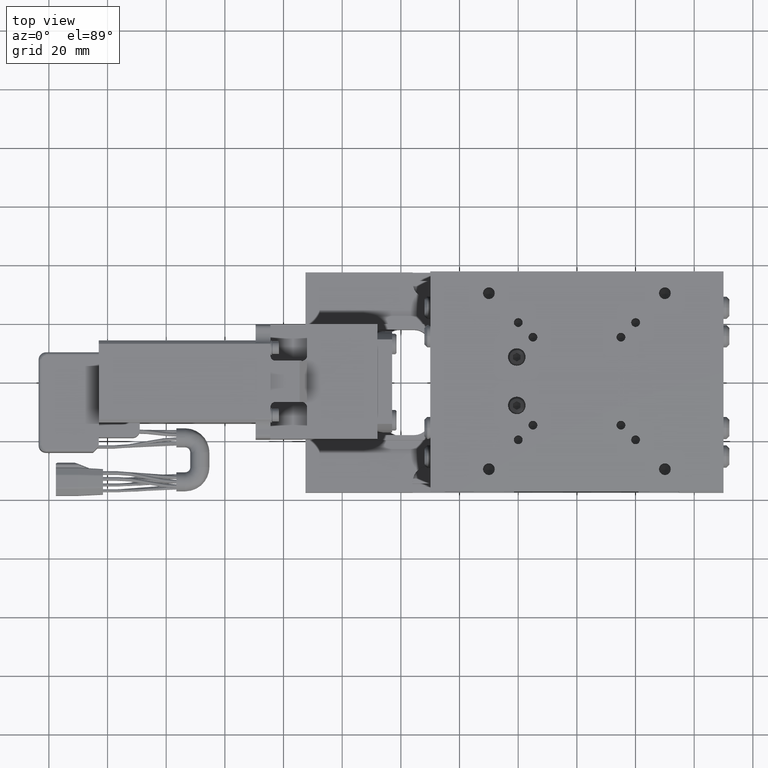
[diagram: clean part render]
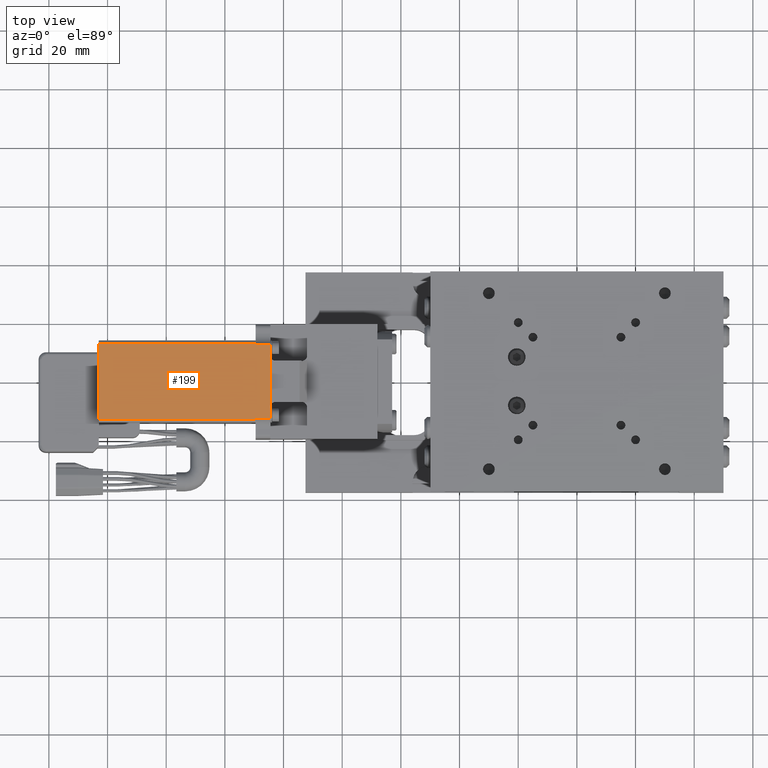
[diagram: same view with one face highlighted and labeled with its STEP entity id]
A machine part, top view. The second image highlights one B-rep face of the part: STEP entity #199.
In plain terms, the highlighted planar face has unit normal (0, 0, 1).
Its self-contained STEP definition (entity closure, byte-faithful):
#199=ADVANCED_FACE('',(#1669),#1668,.T.);
#1668=PLANE('',#11676);
#1669=FACE_OUTER_BOUND('',#11677,.T.);
#11673=CARTESIAN_POINT('',(-1.68850000000E+02,1.54142790954E+01,2.90000000000E+01));
#11674=DIRECTION('',(0.00000000000E+00,0.00000000000E+00,1.00000000000E+00));
#11675=DIRECTION('',(0.00000000000E+00,-1.00000000000E+00,0.00000000000E+00));
#11676=AXIS2_PLACEMENT_3D('',#11673,#11674,#11675);
#11677=EDGE_LOOP('',(#18842,#18843,#18844,#18845,#18846,#18847,#18848,#18849,#18850,#18851));
#18842=ORIENTED_EDGE('',*,*,#23843,.F.);
#18843=ORIENTED_EDGE('',*,*,#23769,.T.);
#18844=ORIENTED_EDGE('',*,*,#23844,.T.);
#18845=ORIENTED_EDGE('',*,*,#23845,.F.);
#18846=ORIENTED_EDGE('',*,*,#23846,.F.);
#18847=ORIENTED_EDGE('',*,*,#23847,.F.);
#18848=ORIENTED_EDGE('',*,*,#23848,.T.);
#18849=ORIENTED_EDGE('',*,*,#23787,.T.);
#18850=ORIENTED_EDGE('',*,*,#23849,.F.);
#18851=ORIENTED_EDGE('',*,*,#23850,.F.);
#23769=EDGE_CURVE('',#27379,#27371,#27380,.T.);
#23787=EDGE_CURVE('',#27505,#27497,#27506,.T.);
#23843=EDGE_CURVE('',#27379,#27894,#27895,.T.);
#23844=EDGE_CURVE('',#27371,#27901,#27902,.T.);
#23845=EDGE_CURVE('',#27908,#27901,#27909,.T.);
#23846=EDGE_CURVE('',#27915,#27908,#27916,.T.);
#23847=EDGE_CURVE('',#27922,#27915,#27923,.T.);
#23848=EDGE_CURVE('',#27922,#27505,#27929,.T.);
#23849=EDGE_CURVE('',#27935,#27497,#27936,.T.);
#23850=EDGE_CURVE('',#27894,#27935,#27942,.T.);
#27371=VERTEX_POINT('',#43853);
#27379=VERTEX_POINT('',#43859);
#27380=LINE('',#43860,#43861);
#27497=VERTEX_POINT('',#43937);
#27505=VERTEX_POINT('',#43943);
#27506=LINE('',#43944,#43945);
#27894=VERTEX_POINT('',#44187);
#27895=LINE('',#44188,#44189);
#27901=VERTEX_POINT('',#44191);
#27902=LINE('',#44192,#44193);
#27908=VERTEX_POINT('',#44195);
#27909=LINE('',#44196,#44197);
#27915=VERTEX_POINT('',#44199);
#27916=LINE('',#44200,#44201);
#27922=VERTEX_POINT('',#44203);
#27923=LINE('',#44204,#44205);
#27929=LINE('',#44207,#44208);
#27935=VERTEX_POINT('',#44210);
#27936=LINE('',#44211,#44212);
#27942=LINE('',#44214,#44215);
#43853=CARTESIAN_POINT('',(-1.09500000000E+02,1.26583426132E+01,2.90000000000E+01));
#43859=CARTESIAN_POINT('',(-1.04500000000E+02,1.26583426132E+01,2.90000000000E+01));
#43860=CARTESIAN_POINT('',(-1.04500000000E+02,1.26583426132E+01,2.90000000000E+01));
#43861=VECTOR('',#43862,5.00000000000E+00);
#43862=DIRECTION('',(-1.00000000000E+00,0.00000000000E+00,0.00000000000E+00));
#43937=CARTESIAN_POINT('',(-1.04500000000E+02,-1.26583426132E+01,2.90000000000E+01));
#43943=CARTESIAN_POINT('',(-1.09500000000E+02,-1.26583426132E+01,2.90000000000E+01));
#43944=CARTESIAN_POINT('',(-1.09500000000E+02,-1.26583426132E+01,2.90000000000E+01));
#43945=VECTOR('',#43946,5.00000000000E+00);
#43946=DIRECTION('',(1.00000000000E+00,0.00000000000E+00,0.00000000000E+00));
#44187=CARTESIAN_POINT('',(-1.04500000000E+02,1.14999999990E+01,2.90000000000E+01));
#44188=CARTESIAN_POINT('',(-1.04500000000E+02,1.26583426132E+01,2.90000000000E+01));
#44189=VECTOR('',#44190,1.15834261421E+00);
#44190=DIRECTION('',(0.00000000000E+00,-1.00000000000E+00,0.00000000000E+00));
#44191=CARTESIAN_POINT('',(-1.09500000000E+02,1.28452325797E+01,2.90000000000E+01));
#44192=CARTESIAN_POINT('',(-1.09500000000E+02,1.26583426132E+01,2.90000000000E+01));
#44193=VECTOR('',#44194,1.86889966427E-01);
#44194=DIRECTION('',(0.00000000000E+00,1.00000000000E+00,0.00000000000E+00));
#44195=CARTESIAN_POINT('',(-1.63000000000E+02,1.28452325797E+01,2.90000000000E+01));
#44196=CARTESIAN_POINT('',(-1.63000000000E+02,1.28452325797E+01,2.90000000000E+01));
#44197=VECTOR('',#44198,5.35000000000E+01);
#44198=DIRECTION('',(1.00000000000E+00,-3.32029315776E-17,0.00000000000E+00));
#44199=CARTESIAN_POINT('',(-1.63000000000E+02,-1.28452325777E+01,2.90000000000E+01));
#44200=CARTESIAN_POINT('',(-1.63000000000E+02,-1.28452325777E+01,2.90000000000E+01));
#44201=VECTOR('',#44202,2.56904651573E+01);
#44202=DIRECTION('',(0.00000000000E+00,1.00000000000E+00,0.00000000000E+00));
#44203=CARTESIAN_POINT('',(-1.09500000000E+02,-1.28452325777E+01,2.90000000000E+01));
#44204=CARTESIAN_POINT('',(-1.09500000000E+02,-1.28452325777E+01,2.90000000000E+01));
#44205=VECTOR('',#44206,5.35000000000E+01);
#44206=DIRECTION('',(-1.00000000000E+00,-9.96087947327E-17,-6.64058631551E-17));
#44207=CARTESIAN_POINT('',(-1.09500000000E+02,-1.28452325777E+01,2.90000000000E+01));
#44208=VECTOR('',#44209,1.86889964452E-01);
#44209=DIRECTION('',(0.00000000000E+00,1.00000000000E+00,0.00000000000E+00));
#44210=CARTESIAN_POINT('',(-1.04500000000E+02,-1.15000000010E+01,2.90000000000E+01));
#44211=CARTESIAN_POINT('',(-1.04500000000E+02,-1.15000000010E+01,2.90000000000E+01));
#44212=VECTOR('',#44213,1.15834261224E+00);
#44213=DIRECTION('',(0.00000000000E+00,-1.00000000000E+00,0.00000000000E+00));
#44214=CARTESIAN_POINT('',(-1.04500000000E+02,1.14999999990E+01,2.90000000000E+01));
#44215=VECTOR('',#44216,2.30000000000E+01);
#44216=DIRECTION('',(0.00000000000E+00,-1.00000000000E+00,0.00000000000E+00));